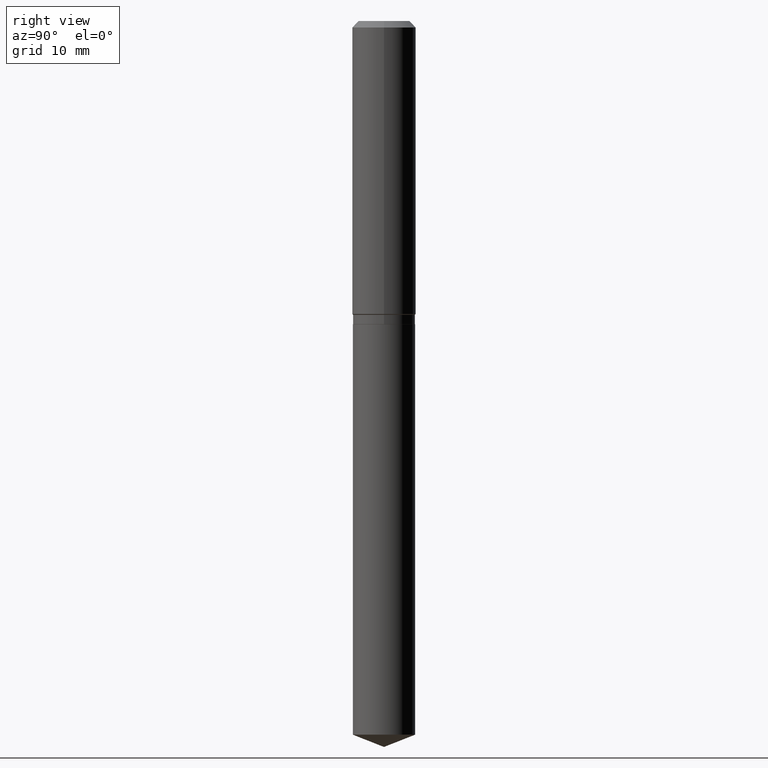
[diagram: clean part render]
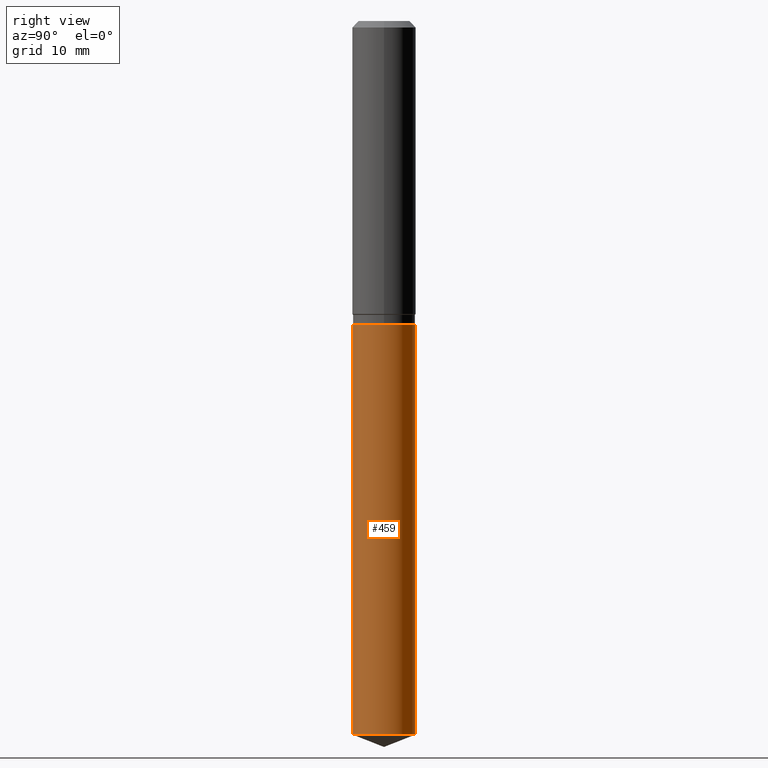
[diagram: same view with one face highlighted and labeled with its STEP entity id]
A machine part, right view. The second image highlights one B-rep face of the part: STEP entity #459.
In plain terms, the highlighted cylindrical surface (edge-blend (fillet) strip) has radius 3.9002 mm, axis along (-0, 0, 1).
Its self-contained STEP definition (entity closure, byte-faithful):
#3 = FACE_OUTER_BOUND ( 'NONE', #119, .T. ) ;
#39 = DIRECTION ( 'NONE',  ( -2.445425864037539356E-29, 3.491542834442619101E-15, 1.000000000000000000 ) ) ;
#40 = DIRECTION ( 'NONE',  ( -2.445425864037539637E-29, 3.491542834442619495E-15, 1.000000000000000000 ) ) ;
#42 = EDGE_CURVE ( 'NONE', #435, #148, #413, .T. ) ;
#62 = CIRCLE ( 'NONE', #222, 0.1535499999999999643 ) ;
#81 = CARTESIAN_POINT ( 'NONE',  ( -1.072233919158689464E-15, -0.1535500000000052101, -1.496399999999999730 ) ) ;
#89 = DIRECTION ( 'NONE',  ( -6.982962677686266711E-15, -1.000000000000000000, 3.558252026915354491E-15 ) ) ;
#106 = EDGE_CURVE ( 'NONE', #145, #148, #384, .T. ) ;
#119 = EDGE_LOOP ( 'NONE', ( #473, #411, #327, #273 ) ) ;
#125 = VECTOR ( 'NONE', #39, 39.37007874015748143 ) ;
#126 = CARTESIAN_POINT ( 'NONE',  ( 8.614113659727150251E-29, -1.229892014770123314E-14, -3.522515046469325561 ) ) ;
#129 = CARTESIAN_POINT ( 'NONE',  ( -1.072233919158639569E-15, -0.1535500000000122045, -3.522515046469325117 ) ) ;
#141 = EDGE_CURVE ( 'NONE', #438, #145, #62, .T. ) ;
#145 = VERTEX_POINT ( 'NONE', #422 ) ;
#148 = VERTEX_POINT ( 'NONE', #450 ) ;
#154 = CARTESIAN_POINT ( 'NONE',  ( 3.659399521575438742E-29, -5.224652675444883351E-15, -1.496400000000000174 ) ) ;
#183 = AXIS2_PLACEMENT_3D ( 'NONE', #483, #420, #89 ) ;
#208 = VECTOR ( 'NONE', #211, 39.37007874015748143 ) ;
#211 = DIRECTION ( 'NONE',  ( -2.445425864037539356E-29, 3.491542834442619101E-15, 1.000000000000000000 ) ) ;
#213 = LINE ( 'NONE', #326, #208 ) ;
#222 = AXIS2_PLACEMENT_3D ( 'NONE', #126, #40, #355 ) ;
#257 = DIRECTION ( 'NONE',  ( -6.982962677686266711E-15, -1.000000000000000000, 3.558252026915354491E-15 ) ) ;
#265 = AXIS2_PLACEMENT_3D ( 'NONE', #154, #302, #257 ) ;
#273 = ORIENTED_EDGE ( 'NONE', *, *, #482, .F. ) ;
#274 = CYLINDRICAL_SURFACE ( 'NONE', #183, 0.1535499999999999921 ) ;
#302 = DIRECTION ( 'NONE',  ( -2.445425864037539637E-29, 3.491542834442619495E-15, 1.000000000000000000 ) ) ;
#326 = CARTESIAN_POINT ( 'NONE',  ( -1.072233919158689464E-15, -0.1535500000000052101, -1.496399999999999730 ) ) ;
#327 = ORIENTED_EDGE ( 'NONE', *, *, #42, .F. ) ;
#355 = DIRECTION ( 'NONE',  ( -6.982962677686266711E-15, -1.000000000000000000, 3.558252026915355280E-15 ) ) ;
#380 = CARTESIAN_POINT ( 'NONE',  ( 1.091038370759670264E-15, 0.1535499999999947740, -1.496400000000000841 ) ) ;
#384 = LINE ( 'NONE', #380, #125 ) ;
#411 = ORIENTED_EDGE ( 'NONE', *, *, #106, .T. ) ;
#413 = CIRCLE ( 'NONE', #265, 0.1535499999999999921 ) ;
#420 = DIRECTION ( 'NONE',  ( -2.445425864037539637E-29, 3.491542834442619495E-15, 1.000000000000000000 ) ) ;
#422 = CARTESIAN_POINT ( 'NONE',  ( 1.091038370759719370E-15, 0.1535499999999876686, -3.522515046469326450 ) ) ;
#435 = VERTEX_POINT ( 'NONE', #81 ) ;
#438 = VERTEX_POINT ( 'NONE', #129 ) ;
#450 = CARTESIAN_POINT ( 'NONE',  ( 1.091038370759720356E-15, 0.1535499999999947740, -1.496400000000000841 ) ) ;
#459 = ADVANCED_FACE ( 'NONE', ( #3 ), #274, .T. ) ;
#473 = ORIENTED_EDGE ( 'NONE', *, *, #141, .T. ) ;
#482 = EDGE_CURVE ( 'NONE', #438, #435, #213, .T. ) ;
#483 = CARTESIAN_POINT ( 'NONE',  ( 3.659399521575438742E-29, -5.224652675444883351E-15, -1.496400000000000174 ) ) ;